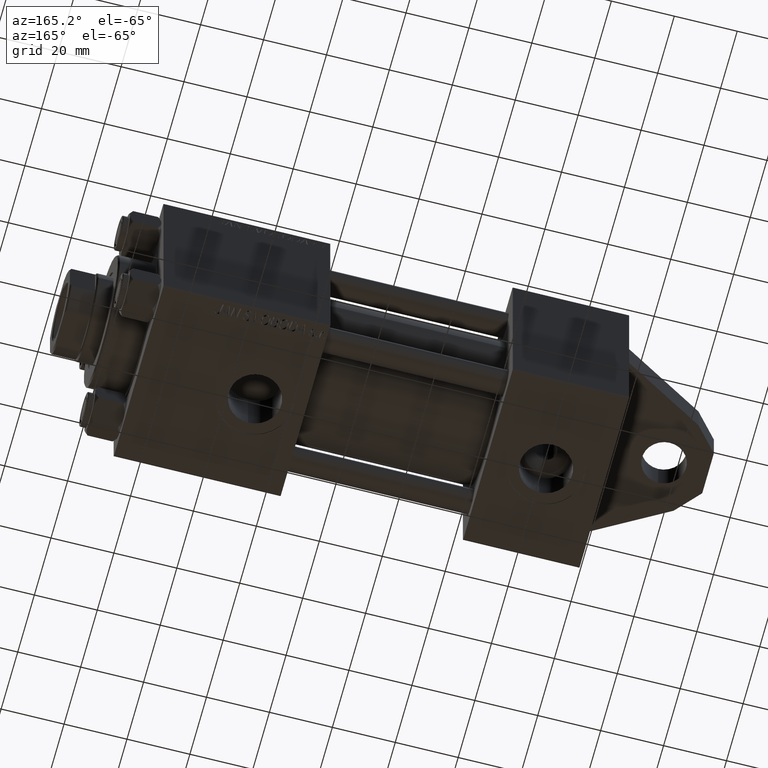
[diagram: clean part render]
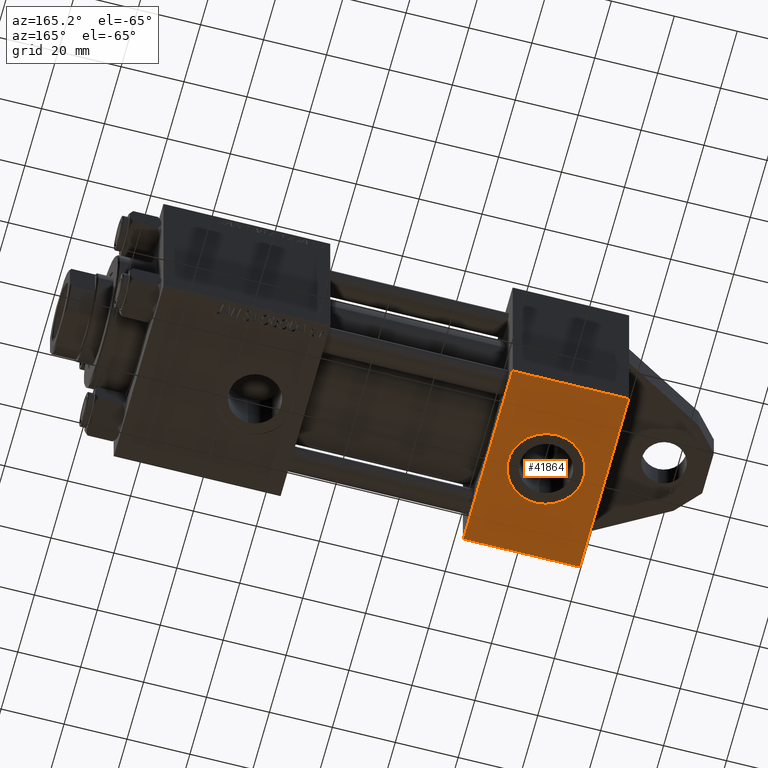
[diagram: same view with one face highlighted and labeled with its STEP entity id]
A machine part, auxiliary view. The second image highlights one B-rep face of the part: STEP entity #41864.
In plain terms, the highlighted planar face has unit normal (-0, 0, 1).
Its self-contained STEP definition (entity closure, byte-faithful):
#453 = PLANE ( 'NONE',  #47435 ) ;
#457 = CARTESIAN_POINT ( 'NONE',  ( 0.000000000000000000, -30.00000000000000000, 29.99999999999999289 ) ) ;
#1156 = CARTESIAN_POINT ( 'NONE',  ( 37.00000000000000000, -30.00000000000000000, 29.99999999999999289 ) ) ;
#1223 = DIRECTION ( 'NONE',  ( 0.000000000000000000, 0.000000000000000000, -1.000000000000000000 ) ) ;
#2094 = LINE ( 'NONE', #12977, #34039 ) ;
#3489 = CARTESIAN_POINT ( 'NONE',  ( 37.00000000000000000, -30.00000000000000000, 29.49999999999999289 ) ) ;
#3598 = LINE ( 'NONE', #457, #32064 ) ;
#3830 = DIRECTION ( 'NONE',  ( -0.000000000000000000, 1.000000000000000000, 0.000000000000000000 ) ) ;
#4376 = ORIENTED_EDGE ( 'NONE', *, *, #16655, .T. ) ;
#5025 = CARTESIAN_POINT ( 'NONE',  ( 37.00000000000000000, -30.00000000000000000, -29.50000000000001776 ) ) ;
#7154 = ORIENTED_EDGE ( 'NONE', *, *, #7665, .F. ) ;
#7237 = LINE ( 'NONE', #36735, #43753 ) ;
#7665 = EDGE_CURVE ( 'NONE', #23083, #38988, #42699, .T. ) ;
#8001 = CIRCLE ( 'NONE', #37339, 12.00000000000000178 ) ;
#8410 = DIRECTION ( 'NONE',  ( 0.000000000000000000, -0.000000000000000000, 1.000000000000000000 ) ) ;
#11094 = FACE_OUTER_BOUND ( 'NONE', #28739, .T. ) ;
#11220 = VERTEX_POINT ( 'NONE', #3489 ) ;
#11317 = VERTEX_POINT ( 'NONE', #12672 ) ;
#12590 = CARTESIAN_POINT ( 'NONE',  ( 18.50000000000000000, -30.00000000000000000, 0.000000000000000000 ) ) ;
#12672 = CARTESIAN_POINT ( 'NONE',  ( 0.000000000000000000, -30.00000000000000000, 29.49999999999999289 ) ) ;
#12977 = CARTESIAN_POINT ( 'NONE',  ( 37.00000000000000000, -30.00000000000000000, -29.50000000000001776 ) ) ;
#14434 = DIRECTION ( 'NONE',  ( 0.000000000000000000, 0.000000000000000000, -1.000000000000000000 ) ) ;
#16079 = ORIENTED_EDGE ( 'NONE', *, *, #33303, .T. ) ;
#16655 = EDGE_CURVE ( 'NONE', #11317, #46825, #3598, .T. ) ;
#16678 = CARTESIAN_POINT ( 'NONE',  ( 0.000000000000000000, -30.00000000000000000, -29.50000000000001776 ) ) ;
#18091 = DIRECTION ( 'NONE',  ( 0.000000000000000000, 0.000000000000000000, -1.000000000000000000 ) ) ;
#19590 = DIRECTION ( 'NONE',  ( 0.000000000000000000, -1.000000000000000000, -8.673617379884036705E-17 ) ) ;
#19632 = VERTEX_POINT ( 'NONE', #5025 ) ;
#19934 = ORIENTED_EDGE ( 'NONE', *, *, #20331, .T. ) ;
#20331 = EDGE_CURVE ( 'NONE', #11220, #11317, #7237, .T. ) ;
#21908 = EDGE_CURVE ( 'NONE', #11220, #19632, #35916, .T. ) ;
#22437 = FACE_BOUND ( 'NONE', #41219, .T. ) ;
#23083 = VERTEX_POINT ( 'NONE', #30721 ) ;
#23337 = CARTESIAN_POINT ( 'NONE',  ( 18.50000000000000000, -30.00000000000000000, -12.00000000000000178 ) ) ;
#28739 = EDGE_LOOP ( 'NONE', ( #4376, #16079, #43361, #19934 ) ) ;
#29465 = DIRECTION ( 'NONE',  ( -1.000000000000000000, 0.000000000000000000, 0.000000000000000000 ) ) ;
#30721 = CARTESIAN_POINT ( 'NONE',  ( 18.50000000000000000, -30.00000000000000000, 12.00000000000000178 ) ) ;
#31793 = DIRECTION ( 'NONE',  ( 0.000000000000000000, 0.000000000000000000, -1.000000000000000000 ) ) ;
#32064 = VECTOR ( 'NONE', #18091, 1000.000000000000000 ) ;
#33287 = CARTESIAN_POINT ( 'NONE',  ( 18.50000000000000000, -30.00000000000000000, 0.000000000000000000 ) ) ;
#33303 = EDGE_CURVE ( 'NONE', #46825, #19632, #2094, .T. ) ;
#34039 = VECTOR ( 'NONE', #39779, 1000.000000000000000 ) ;
#35916 = LINE ( 'NONE', #42908, #42922 ) ;
#36727 = ORIENTED_EDGE ( 'NONE', *, *, #42883, .F. ) ;
#36735 = CARTESIAN_POINT ( 'NONE',  ( 37.00000000000000000, -30.00000000000000000, 29.49999999999999289 ) ) ;
#37339 = AXIS2_PLACEMENT_3D ( 'NONE', #12590, #19590, #1223 ) ;
#38988 = VERTEX_POINT ( 'NONE', #23337 ) ;
#39779 = DIRECTION ( 'NONE',  ( 1.000000000000000000, 0.000000000000000000, 0.000000000000000000 ) ) ;
#41005 = DIRECTION ( 'NONE',  ( 0.000000000000000000, -1.000000000000000000, -8.673617379884036705E-17 ) ) ;
#41219 = EDGE_LOOP ( 'NONE', ( #36727, #7154 ) ) ;
#41864 = ADVANCED_FACE ( 'NONE', ( #22437, #11094 ), #453, .F. ) ;
#42699 = CIRCLE ( 'NONE', #45776, 12.00000000000000178 ) ;
#42883 = EDGE_CURVE ( 'NONE', #38988, #23083, #8001, .T. ) ;
#42908 = CARTESIAN_POINT ( 'NONE',  ( 37.00000000000000000, -30.00000000000000000, 29.99999999999999289 ) ) ;
#42922 = VECTOR ( 'NONE', #31793, 1000.000000000000000 ) ;
#43361 = ORIENTED_EDGE ( 'NONE', *, *, #21908, .F. ) ;
#43753 = VECTOR ( 'NONE', #29465, 1000.000000000000000 ) ;
#45776 = AXIS2_PLACEMENT_3D ( 'NONE', #33287, #41005, #14434 ) ;
#46825 = VERTEX_POINT ( 'NONE', #16678 ) ;
#47435 = AXIS2_PLACEMENT_3D ( 'NONE', #1156, #3830, #8410 ) ;